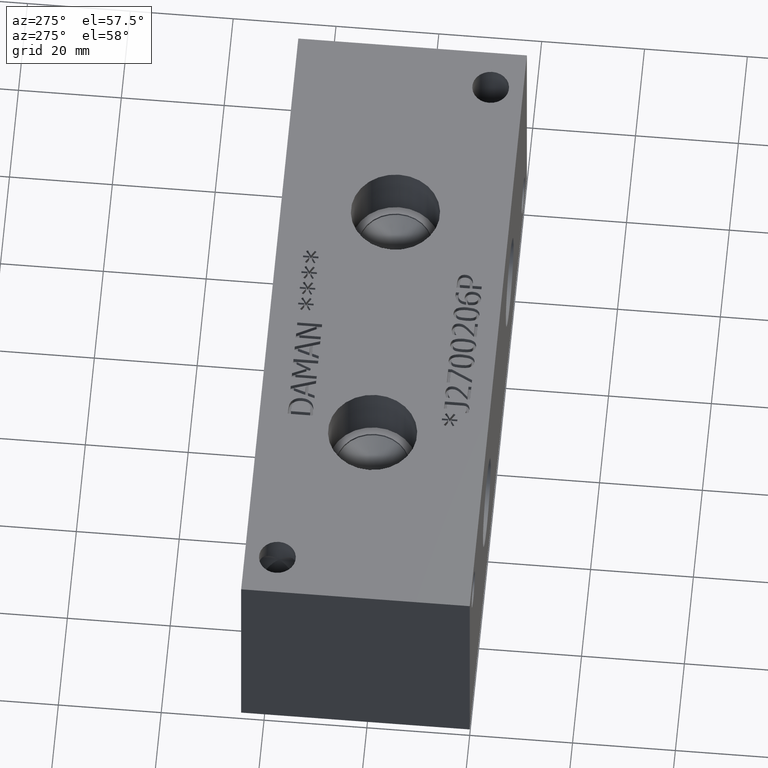
[diagram: clean part render]
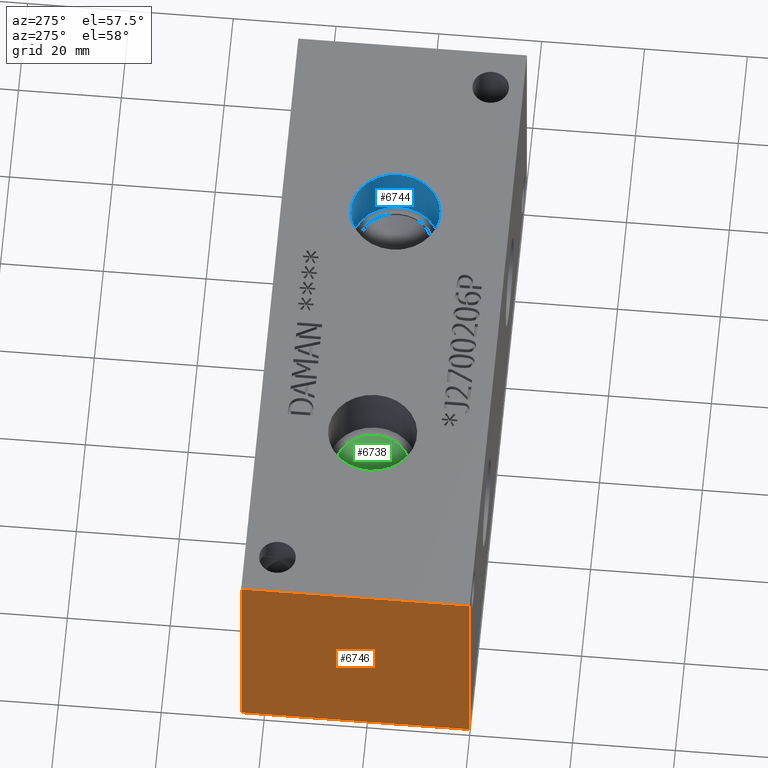
[diagram: same view with three faces highlighted in distinct colors, each labeled with its STEP entity id]
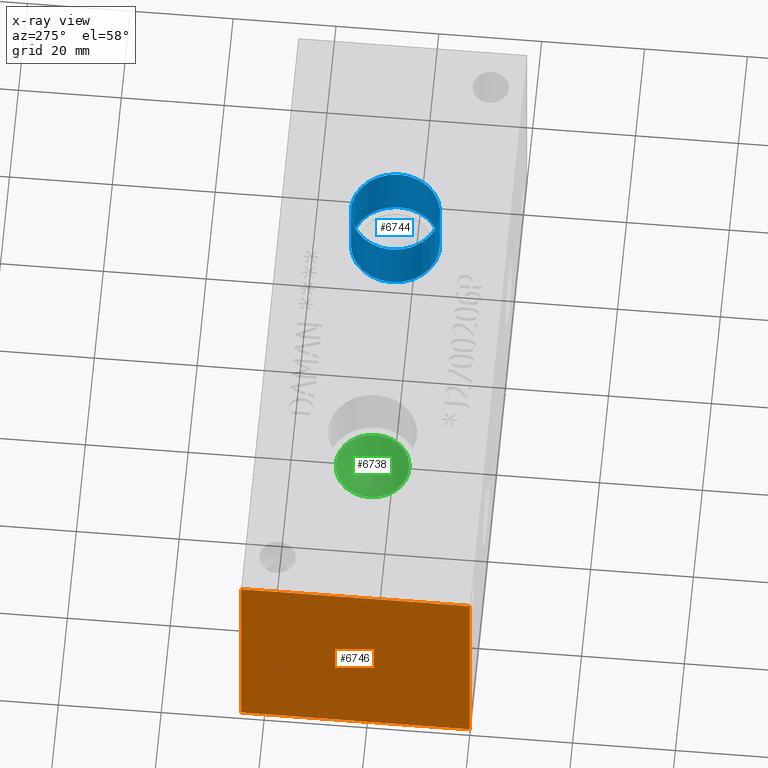
[diagram: x-ray of the same camera — body ghosted, the three highlighted faces saturated]
A machine part, auxiliary view with three faces highlighted in distinct colors.
The next image is the same camera in x-ray (body ghosted, the three faces saturated) — at least one of them is partly hidden behind the body in this view.
Their STEP definitions:

[orange] entity #6746 — the highlighted planar face has unit normal (-1, 0, 0).
#359=PLANE('',#7064);
#699=FACE_OUTER_BOUND('',#1076,.T.);
#1076=EDGE_LOOP('',(#5980,#5981,#5982,#5983));
#1347=LINE('',#10400,#2014);
#1751=LINE('',#11494,#2418);
#1752=LINE('',#11495,#2419);
#1753=LINE('',#11496,#2420);
#2014=VECTOR('',#7457,10.);
#2418=VECTOR('',#8329,10.);
#2419=VECTOR('',#8330,10.);
#2420=VECTOR('',#8331,10.);
#2910=VERTEX_POINT('',#10393);
#2913=VERTEX_POINT('',#10398);
#3240=VERTEX_POINT('',#11492);
#3241=VERTEX_POINT('',#11493);
#3679=EDGE_CURVE('',#2913,#2910,#1347,.T.);
#4161=EDGE_CURVE('',#3240,#3241,#1751,.T.);
#4162=EDGE_CURVE('',#3241,#2910,#1752,.T.);
#4163=EDGE_CURVE('',#3240,#2913,#1753,.T.);
#5980=ORIENTED_EDGE('',*,*,#4161,.T.);
#5981=ORIENTED_EDGE('',*,*,#4162,.T.);
#5982=ORIENTED_EDGE('',*,*,#3679,.F.);
#5983=ORIENTED_EDGE('',*,*,#4163,.F.);
#6746=ADVANCED_FACE('',(#699),#359,.T.);
#7064=AXIS2_PLACEMENT_3D('',#11491,#8327,#8328);
#7457=DIRECTION('',(0.,-1.,0.));
#8327=DIRECTION('center_axis',(-1.,0.,0.));
#8328=DIRECTION('ref_axis',(0.,-1.,0.));
#8329=DIRECTION('',(0.,-1.,0.));
#8330=DIRECTION('',(0.,0.,1.));
#8331=DIRECTION('',(0.,0.,1.));
#10393=CARTESIAN_POINT('',(0.,0.,44.45));
#10398=CARTESIAN_POINT('',(0.,44.45,44.45));
#10400=CARTESIAN_POINT('',(0.,44.45,44.45));
#11491=CARTESIAN_POINT('Origin',(0.,44.45,0.));
#11492=CARTESIAN_POINT('',(0.,44.45,0.));
#11493=CARTESIAN_POINT('',(0.,0.,0.));
#11494=CARTESIAN_POINT('',(0.,44.45,0.));
#11495=CARTESIAN_POINT('',(0.,0.,0.));
#11496=CARTESIAN_POINT('',(0.,44.45,0.));

[blue] entity #6744 — the highlighted cylindrical surface (bore or boss wall) has radius 8.6487 mm, axis along (0, 0, 1).
#40=CYLINDRICAL_SURFACE('',#7062,8.6487);
#54=CIRCLE('',#6837,8.6487);
#55=CIRCLE('',#6838,8.6487);
#99=CIRCLE('',#7059,8.6487);
#100=CIRCLE('',#7060,8.6487);
#697=FACE_OUTER_BOUND('',#1074,.T.);
#1074=EDGE_LOOP('',(#5969,#5970,#5971,#5972,#5973,#5974));
#1749=LINE('',#11488,#2416);
#2416=VECTOR('',#8323,8.6487);
#3038=VERTEX_POINT('',#10661);
#3039=VERTEX_POINT('',#10662);
#3237=VERTEX_POINT('',#11481);
#3238=VERTEX_POINT('',#11482);
#3804=EDGE_CURVE('',#3038,#3039,#54,.T.);
#3805=EDGE_CURVE('',#3039,#3038,#55,.T.);
#4156=EDGE_CURVE('',#3237,#3238,#99,.T.);
#4157=EDGE_CURVE('',#3238,#3237,#100,.T.);
#4159=EDGE_CURVE('',#3039,#3238,#1749,.T.);
#5969=ORIENTED_EDGE('',*,*,#3804,.F.);
#5970=ORIENTED_EDGE('',*,*,#3805,.F.);
#5971=ORIENTED_EDGE('',*,*,#4159,.T.);
#5972=ORIENTED_EDGE('',*,*,#4156,.F.);
#5973=ORIENTED_EDGE('',*,*,#4157,.F.);
#5974=ORIENTED_EDGE('',*,*,#4159,.F.);
#6744=ADVANCED_FACE('',(#697),#40,.F.);
#6837=AXIS2_PLACEMENT_3D('',#10663,#7584,#7585);
#6838=AXIS2_PLACEMENT_3D('',#10664,#7586,#7587);
#7059=AXIS2_PLACEMENT_3D('',#11483,#8315,#8316);
#7060=AXIS2_PLACEMENT_3D('',#11484,#8317,#8318);
#7062=AXIS2_PLACEMENT_3D('',#11487,#8321,#8322);
#7584=DIRECTION('center_axis',(0.,0.,-1.));
#7585=DIRECTION('ref_axis',(1.,0.,0.));
#7586=DIRECTION('center_axis',(0.,0.,-1.));
#7587=DIRECTION('ref_axis',(1.,0.,0.));
#8315=DIRECTION('center_axis',(0.,0.,1.));
#8316=DIRECTION('ref_axis',(1.,0.,0.));
#8317=DIRECTION('center_axis',(0.,0.,1.));
#8318=DIRECTION('ref_axis',(1.,0.,0.));
#8321=DIRECTION('center_axis',(0.,0.,1.));
#8322=DIRECTION('ref_axis',(1.,0.,0.));
#8323=DIRECTION('',(0.,0.,-1.));
#10661=CARTESIAN_POINT('',(97.5487,22.225,44.45));
#10662=CARTESIAN_POINT('',(80.2513,22.225,44.45));
#10663=CARTESIAN_POINT('Origin',(88.9,22.225,44.45));
#10664=CARTESIAN_POINT('Origin',(88.9,22.225,44.45));
#11481=CARTESIAN_POINT('',(97.5487,22.225,32.7152));
#11482=CARTESIAN_POINT('',(80.2513,22.225,32.7152));
#11483=CARTESIAN_POINT('Origin',(88.9,22.225,32.7152));
#11484=CARTESIAN_POINT('Origin',(88.9,22.225,32.7152));
#11487=CARTESIAN_POINT('Origin',(88.9,22.225,38.5826));
#11488=CARTESIAN_POINT('',(80.2513,22.225,38.5826));

[green] entity #6738 — the highlighted conical surface has half-angle 60 deg.
#46=CONICAL_SURFACE('',#7046,3.57505,1.0471975511966);
#92=CIRCLE('',#7047,7.1501);
#93=CIRCLE('',#7048,7.1501);
#691=FACE_OUTER_BOUND('',#1066,.T.);
#1066=EDGE_LOOP('',(#5944,#5945,#5946,#5947));
#1745=LINE('',#11460,#2412);
#2412=VECTOR('',#8289,3.57505);
#3228=VERTEX_POINT('',#11456);
#3229=VERTEX_POINT('',#11457);
#3230=VERTEX_POINT('',#11459);
#4145=EDGE_CURVE('',#3228,#3229,#92,.T.);
#4146=EDGE_CURVE('',#3229,#3230,#1745,.T.);
#4147=EDGE_CURVE('',#3229,#3228,#93,.T.);
#5944=ORIENTED_EDGE('',*,*,#4145,.T.);
#5945=ORIENTED_EDGE('',*,*,#4146,.T.);
#5946=ORIENTED_EDGE('',*,*,#4146,.F.);
#5947=ORIENTED_EDGE('',*,*,#4147,.T.);
#6738=ADVANCED_FACE('',(#691),#46,.F.);
#7046=AXIS2_PLACEMENT_3D('',#11455,#8285,#8286);
#7047=AXIS2_PLACEMENT_3D('',#11458,#8287,#8288);
#7048=AXIS2_PLACEMENT_3D('',#11461,#8290,#8291);
#8285=DIRECTION('center_axis',(0.,0.,1.));
#8286=DIRECTION('ref_axis',(1.,0.,0.));
#8287=DIRECTION('center_axis',(0.,0.,1.));
#8288=DIRECTION('ref_axis',(1.,0.,0.));
#8289=DIRECTION('',(0.866025403784439,1.06057523872491E-16,-0.5));
#8290=DIRECTION('center_axis',(0.,0.,1.));
#8291=DIRECTION('ref_axis',(1.,0.,0.));
#11455=CARTESIAN_POINT('Origin',(38.1,22.225,30.2383339201336));
#11456=CARTESIAN_POINT('',(45.2501,22.225,32.30239));
#11457=CARTESIAN_POINT('',(30.9499,22.225,32.30239));
#11458=CARTESIAN_POINT('Origin',(38.1,22.225,32.30239));
#11459=CARTESIAN_POINT('',(38.1,22.225,28.1742778402673));
#11460=CARTESIAN_POINT('',(34.52495,22.225,30.2383339201336));
#11461=CARTESIAN_POINT('Origin',(38.1,22.225,32.30239));